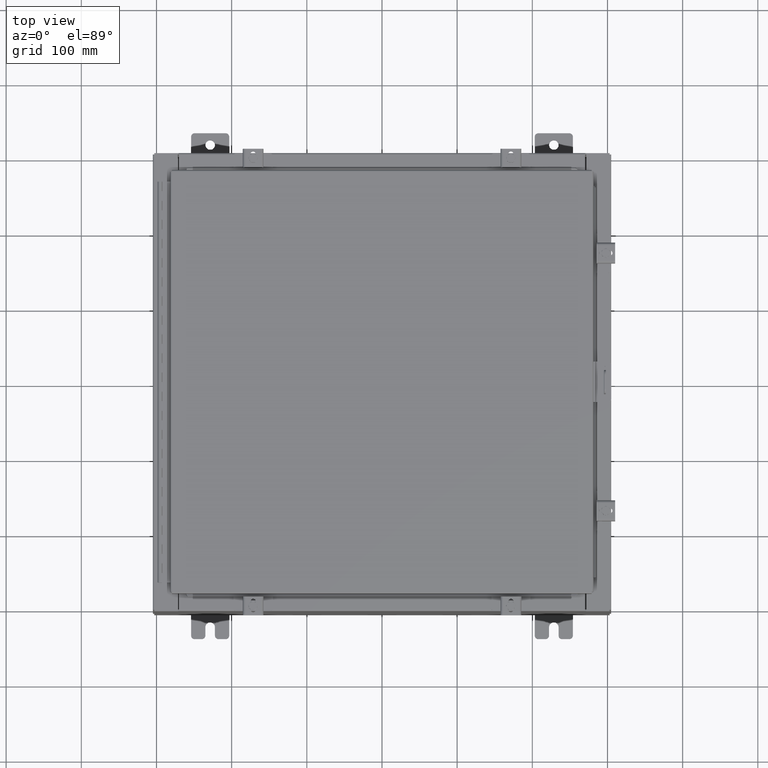
[diagram: clean part render]
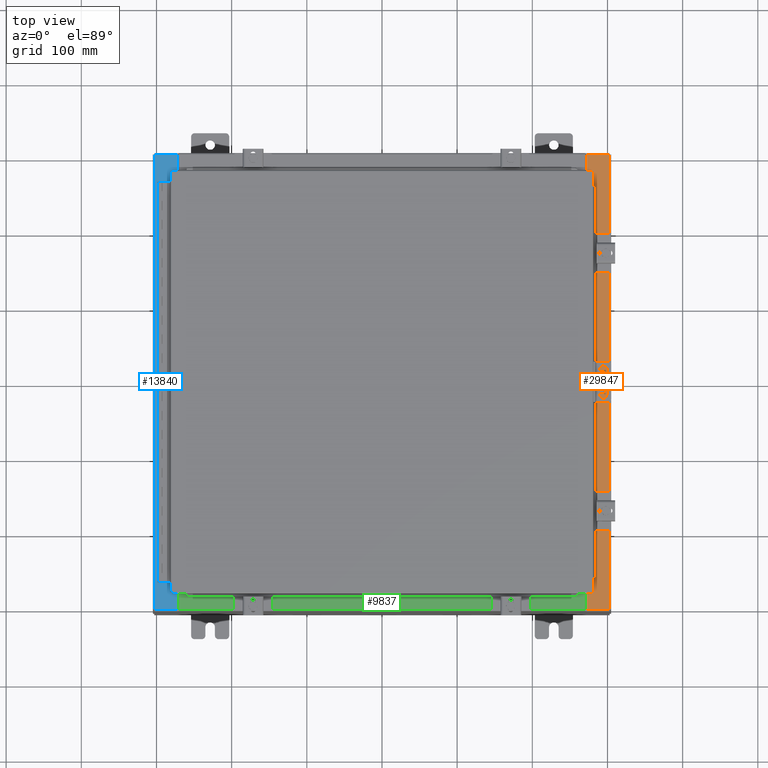
[diagram: same view with three faces highlighted in distinct colors, each labeled with its STEP entity id]
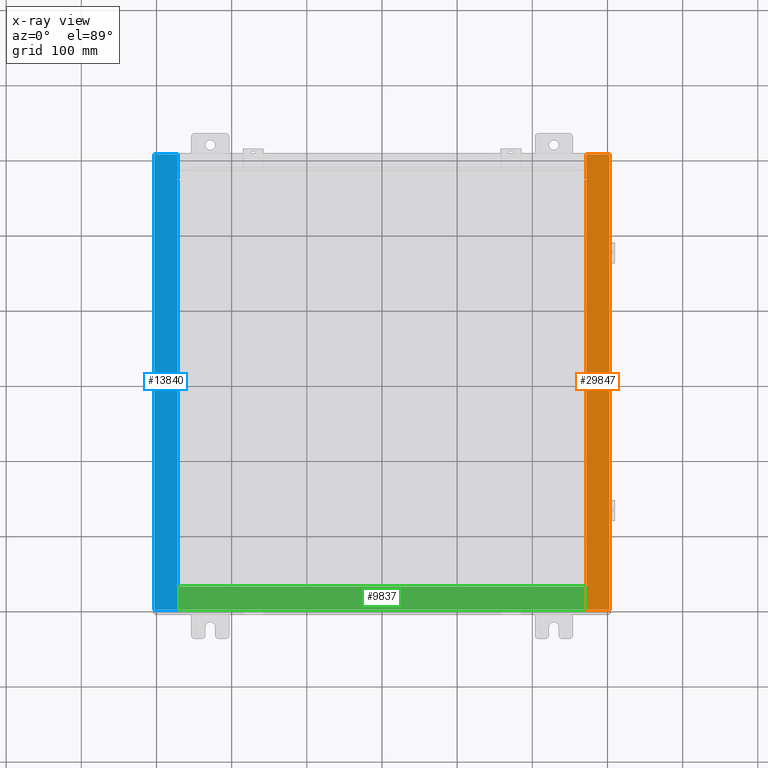
[diagram: x-ray of the same camera — body ghosted, the three highlighted faces saturated]
A machine part, top view with three faces highlighted in distinct colors.
The next image is the same camera in x-ray (body ghosted, the three faces saturated) — at least one of them is partly hidden behind the body in this view.
Their STEP definitions:

[orange] entity #29847 — the highlighted planar face has unit normal (-0, 0, -1).
#37 = VERTEX_POINT ( 'NONE', #21511 ) ;
#758 = VERTEX_POINT ( 'NONE', #10396 ) ;
#785 = VERTEX_POINT ( 'NONE', #8113 ) ;
#1003 = FACE_OUTER_BOUND ( 'NONE', #9309, .T. ) ;
#1057 = DIRECTION ( 'NONE',  ( 1.000000000000000000, 0.0000000000000000000, 0.0000000000000000000 ) ) ;
#1226 = CARTESIAN_POINT ( 'NONE',  ( 10.69970000000004100, -11.92530000000000400, 11.92530000000000900 ) ) ;
#1504 = VERTEX_POINT ( 'NONE', #20667 ) ;
#2191 = LINE ( 'NONE', #11053, #27253 ) ;
#3299 = CARTESIAN_POINT ( 'NONE',  ( 10.71270000000004300, -10.59374999999999800, 11.92530000000000900 ) ) ;
#3315 = CARTESIAN_POINT ( 'NONE',  ( 10.69970000000004100, 11.92529999999999600, 11.92530000000000900 ) ) ;
#4380 = CARTESIAN_POINT ( 'NONE',  ( 10.75005000000004300, 10.61242499999998400, 11.92530000000000900 ) ) ;
#5489 = VERTEX_POINT ( 'NONE', #1226 ) ;
#5495 = DIRECTION ( 'NONE',  ( -1.000000000000000000, 0.0000000000000000000, 0.0000000000000000000 ) ) ;
#5652 = VECTOR ( 'NONE', #8231, 39.37007874015748100 ) ;
#5933 = CARTESIAN_POINT ( 'NONE',  ( 8.532114493236847900E-014, 11.92529999999999600, 11.92530000000008500 ) ) ;
#6438 = ORIENTED_EDGE ( 'NONE', *, *, #10345, .T. ) ;
#6631 = CARTESIAN_POINT ( 'NONE',  ( 10.69970000000004100, -10.63110000000000200, 11.92530000000000900 ) ) ;
#6781 = LINE ( 'NONE', #18415, #32022 ) ;
#6853 = DIRECTION ( 'NONE',  ( 1.000000000000000000, 0.0000000000000000000, 0.0000000000000000000 ) ) ;
#7040 = DIRECTION ( 'NONE',  ( 0.0000000000000000000, -1.000000000000000000, 0.0000000000000000000 ) ) ;
#7774 = EDGE_CURVE ( 'NONE', #785, #758, #6781, .T. ) ;
#8113 = CARTESIAN_POINT ( 'NONE',  ( 10.71270000000004300, 10.59374999999998400, 11.92530000000000900 ) ) ;
#8231 = DIRECTION ( 'NONE',  ( -0.0000000000000000000, 1.000000000000000000, -0.0000000000000000000 ) ) ;
#8345 = VERTEX_POINT ( 'NONE', #26129 ) ;
#8487 = CARTESIAN_POINT ( 'NONE',  ( 11.91230000000003900, 11.92529999999999600, 11.92530000000000000 ) ) ;
#8748 = ORIENTED_EDGE ( 'NONE', *, *, #16696, .F. ) ;
#8951 = PLANE ( 'NONE',  #27566 ) ;
#9054 = EDGE_CURVE ( 'NONE', #758, #8345, #21541, .T. ) ;
#9102 = EDGE_CURVE ( 'NONE', #24243, #10454, #14054, .T. ) ;
#9309 = EDGE_LOOP ( 'NONE', ( #23076, #24942, #6438, #19589, #19623, #21460, #18783, #15992, #9600, #18583, #8748, #12539 ) ) ;
#9571 = CARTESIAN_POINT ( 'NONE',  ( 10.75005000000004300, -10.61242500000000200, 11.92530000000000900 ) ) ;
#9600 = ORIENTED_EDGE ( 'NONE', *, *, #7774, .F. ) ;
#10144 = CARTESIAN_POINT ( 'NONE',  ( 10.75005000000004300, -10.63110000000000200, 11.92530000000000900 ) ) ;
#10345 = EDGE_CURVE ( 'NONE', #5489, #1504, #23465, .T. ) ;
#10396 = CARTESIAN_POINT ( 'NONE',  ( 10.75005000000004300, 10.59374999999998400, 11.92530000000000900 ) ) ;
#10399 = CARTESIAN_POINT ( 'NONE',  ( 10.75005000000004300, -10.59375000000000200, 11.92530000000000900 ) ) ;
#10454 = VERTEX_POINT ( 'NONE', #31237 ) ;
#10577 = CARTESIAN_POINT ( 'NONE',  ( 8.532114493236847900E-014, -11.92530000000000400, 11.92530000000008500 ) ) ;
#11053 = CARTESIAN_POINT ( 'NONE',  ( 11.91230000000003900, -11.92530000000000400, 11.92530000000000000 ) ) ;
#11944 = CARTESIAN_POINT ( 'NONE',  ( 10.69970000000004100, 0.0000000000000000000, 11.92530000000000900 ) ) ;
#12076 = DIRECTION ( 'NONE',  ( 1.000000000000000000, 0.0000000000000000000, 0.0000000000000000000 ) ) ;
#12212 = EDGE_CURVE ( 'NONE', #27358, #24243, #19800, .T. ) ;
#12539 = ORIENTED_EDGE ( 'NONE', *, *, #13124, .F. ) ;
#12825 = EDGE_CURVE ( 'NONE', #16334, #32160, #26513, .T. ) ;
#13124 = EDGE_CURVE ( 'NONE', #32160, #37, #32084, .T. ) ;
#13270 = VECTOR ( 'NONE', #14482, 39.37007874015748100 ) ;
#13297 = AXIS2_PLACEMENT_3D ( 'NONE', #9571, #27213, #12076 ) ;
#13401 = DIRECTION ( 'NONE',  ( 1.000000000000000000, 0.0000000000000000000, 0.0000000000000000000 ) ) ;
#13568 = DIRECTION ( 'NONE',  ( -0.0000000000000000000, -1.000000000000000000, -0.0000000000000000000 ) ) ;
#13753 = EDGE_CURVE ( 'NONE', #16334, #5489, #21753, .T. ) ;
#13886 = VECTOR ( 'NONE', #26028, 39.37007874015748100 ) ;
#13964 = DIRECTION ( 'NONE',  ( -7.132762385546384700E-015, 0.0000000000000000000, -1.000000000000000000 ) ) ;
#14054 = LINE ( 'NONE', #11944, #13270 ) ;
#14482 = DIRECTION ( 'NONE',  ( 0.0000000000000000000, -1.000000000000000000, 0.0000000000000000000 ) ) ;
#14561 = VECTOR ( 'NONE', #5495, 39.37007874015748100 ) ;
#14614 = EDGE_CURVE ( 'NONE', #26470, #785, #32458, .T. ) ;
#15847 = VECTOR ( 'NONE', #7040, 39.37007874015748100 ) ;
#15992 = ORIENTED_EDGE ( 'NONE', *, *, #9054, .F. ) ;
#16334 = VERTEX_POINT ( 'NONE', #6631 ) ;
#16696 = EDGE_CURVE ( 'NONE', #37, #26470, #30480, .T. ) ;
#16746 = VECTOR ( 'NONE', #18146, 39.37007874015748100 ) ;
#17064 = AXIS2_PLACEMENT_3D ( 'NONE', #4380, #21852, #6853 ) ;
#17287 = EDGE_CURVE ( 'NONE', #27358, #1504, #2191, .T. ) ;
#17800 = EDGE_CURVE ( 'NONE', #8345, #10454, #20467, .T. ) ;
#18146 = DIRECTION ( 'NONE',  ( 1.000000000000000000, 0.0000000000000000000, -7.132762385546384700E-015 ) ) ;
#18415 = CARTESIAN_POINT ( 'NONE',  ( 10.71270000000004300, 10.59374999999998400, 11.92530000000000900 ) ) ;
#18583 = ORIENTED_EDGE ( 'NONE', *, *, #14614, .F. ) ;
#18783 = ORIENTED_EDGE ( 'NONE', *, *, #17800, .F. ) ;
#19589 = ORIENTED_EDGE ( 'NONE', *, *, #17287, .F. ) ;
#19623 = ORIENTED_EDGE ( 'NONE', *, *, #12212, .T. ) ;
#19772 = VECTOR ( 'NONE', #13401, 39.37007874015748100 ) ;
#19800 = LINE ( 'NONE', #5933, #13886 ) ;
#20467 = LINE ( 'NONE', #23014, #14561 ) ;
#20667 = CARTESIAN_POINT ( 'NONE',  ( 11.91230000000003900, -11.92530000000000400, 11.92530000000000000 ) ) ;
#21460 = ORIENTED_EDGE ( 'NONE', *, *, #9102, .T. ) ;
#21511 = CARTESIAN_POINT ( 'NONE',  ( 10.75005000000004300, -10.59375000000000200, 11.92530000000000900 ) ) ;
#21541 = CIRCLE ( 'NONE', #17064, 0.01867499999999949400 ) ;
#21753 = LINE ( 'NONE', #22051, #15847 ) ;
#21852 = DIRECTION ( 'NONE',  ( 7.132762385546384700E-015, 0.0000000000000000000, 1.000000000000000000 ) ) ;
#21931 = CARTESIAN_POINT ( 'NONE',  ( 10.71270000000004300, -10.59375000000000200, 11.92530000000000900 ) ) ;
#22051 = CARTESIAN_POINT ( 'NONE',  ( 10.69970000000004100, 0.0000000000000000000, 11.92530000000000900 ) ) ;
#23014 = CARTESIAN_POINT ( 'NONE',  ( 10.75005000000004300, 10.63109999999998400, 11.92530000000000900 ) ) ;
#23076 = ORIENTED_EDGE ( 'NONE', *, *, #12825, .F. ) ;
#23447 = CARTESIAN_POINT ( 'NONE',  ( 10.69970000000004100, -10.63110000000000200, 11.92530000000000900 ) ) ;
#23465 = LINE ( 'NONE', #10577, #16746 ) ;
#24243 = VERTEX_POINT ( 'NONE', #3315 ) ;
#24499 = VECTOR ( 'NONE', #30628, 39.37007874015748100 ) ;
#24942 = ORIENTED_EDGE ( 'NONE', *, *, #13753, .T. ) ;
#26028 = DIRECTION ( 'NONE',  ( -1.000000000000000000, 0.0000000000000000000, 7.132762385546384700E-015 ) ) ;
#26129 = CARTESIAN_POINT ( 'NONE',  ( 10.75005000000004300, 10.63109999999998400, 11.92530000000000900 ) ) ;
#26470 = VERTEX_POINT ( 'NONE', #21931 ) ;
#26513 = LINE ( 'NONE', #23447, #19772 ) ;
#27213 = DIRECTION ( 'NONE',  ( 7.132762385546384700E-015, 0.0000000000000000000, 1.000000000000000000 ) ) ;
#27253 = VECTOR ( 'NONE', #13568, 39.37007874015748100 ) ;
#27358 = VERTEX_POINT ( 'NONE', #8487 ) ;
#27566 = AXIS2_PLACEMENT_3D ( 'NONE', #29133, #13964, #31686 ) ;
#29133 = CARTESIAN_POINT ( 'NONE',  ( 8.532114493236847900E-014, 0.0000000000000000000, 11.92530000000008500 ) ) ;
#29847 = ADVANCED_FACE ( 'NONE', ( #1003 ), #8951, .F. ) ;
#30480 = LINE ( 'NONE', #10399, #24499 ) ;
#30628 = DIRECTION ( 'NONE',  ( -1.000000000000000000, 0.0000000000000000000, 0.0000000000000000000 ) ) ;
#31237 = CARTESIAN_POINT ( 'NONE',  ( 10.69970000000004100, 10.63109999999998600, 11.92530000000000900 ) ) ;
#31686 = DIRECTION ( 'NONE',  ( -1.000000000000000000, 0.0000000000000000000, 7.132762385546384700E-015 ) ) ;
#32022 = VECTOR ( 'NONE', #1057, 39.37007874015748100 ) ;
#32084 = CIRCLE ( 'NONE', #13297, 0.01867499999999949400 ) ;
#32160 = VERTEX_POINT ( 'NONE', #10144 ) ;
#32458 = LINE ( 'NONE', #3299, #5652 ) ;

[blue] entity #13840 — the highlighted planar face has unit normal (0, 0, -1).
#293 = DIRECTION ( 'NONE',  ( -1.000000000000000000, 0.0000000000000000000, -7.132762385546384700E-015 ) ) ;
#715 = EDGE_CURVE ( 'NONE', #11263, #8062, #16193, .T. ) ;
#762 = CARTESIAN_POINT ( 'NONE',  ( -10.71270000000004800, -10.59374999999998900, 11.92530000000000900 ) ) ;
#1096 = ORIENTED_EDGE ( 'NONE', *, *, #12403, .F. ) ;
#1371 = CARTESIAN_POINT ( 'NONE',  ( -11.91230000000004500, -11.92530000000000000, 11.92530000000000000 ) ) ;
#1410 = EDGE_CURVE ( 'NONE', #31050, #10218, #10649, .T. ) ;
#1416 = LINE ( 'NONE', #4558, #20919 ) ;
#1535 = LINE ( 'NONE', #23253, #27349 ) ;
#1676 = CARTESIAN_POINT ( 'NONE',  ( -10.75005000000004600, -10.63109999999998800, 11.92530000000000900 ) ) ;
#2502 = DIRECTION ( 'NONE',  ( 7.132762385546384700E-015, 0.0000000000000000000, -1.000000000000000000 ) ) ;
#2624 = EDGE_CURVE ( 'NONE', #19369, #31050, #5578, .T. ) ;
#2973 = CARTESIAN_POINT ( 'NONE',  ( -10.75005000000004600, -10.59374999999998900, 11.92530000000000900 ) ) ;
#3248 = VECTOR ( 'NONE', #7313, 39.37007874015748100 ) ;
#4063 = VECTOR ( 'NONE', #28016, 39.37007874015748100 ) ;
#4433 = DIRECTION ( 'NONE',  ( -1.000000000000000000, 0.0000000000000000000, 0.0000000000000000000 ) ) ;
#4558 = CARTESIAN_POINT ( 'NONE',  ( -10.75005000000004600, 10.59374999999999800, 11.92530000000000900 ) ) ;
#5079 = VERTEX_POINT ( 'NONE', #6465 ) ;
#5578 = LINE ( 'NONE', #14065, #24796 ) ;
#5785 = CARTESIAN_POINT ( 'NONE',  ( -10.75005000000004600, 10.61242499999999800, 11.92530000000000900 ) ) ;
#6032 = EDGE_CURVE ( 'NONE', #8062, #24642, #19445, .T. ) ;
#6341 = CARTESIAN_POINT ( 'NONE',  ( -10.69970000000004600, -11.92530000000000000, 11.92530000000000900 ) ) ;
#6465 = CARTESIAN_POINT ( 'NONE',  ( -10.75005000000004600, -10.63109999999998800, 11.92530000000000900 ) ) ;
#6600 = DIRECTION ( 'NONE',  ( -7.132762385546384700E-015, -0.0000000000000000000, 1.000000000000000000 ) ) ;
#6932 = LINE ( 'NONE', #23075, #18675 ) ;
#6995 = EDGE_LOOP ( 'NONE', ( #23199, #26454, #17493, #17280, #13218, #27930, #25802, #23777, #1096, #30701, #12829, #31405 ) ) ;
#7313 = DIRECTION ( 'NONE',  ( 0.0000000000000000000, 1.000000000000000000, 0.0000000000000000000 ) ) ;
#7339 = VERTEX_POINT ( 'NONE', #14369 ) ;
#7959 = EDGE_CURVE ( 'NONE', #24642, #7339, #1416, .T. ) ;
#8062 = VERTEX_POINT ( 'NONE', #12461 ) ;
#8259 = DIRECTION ( 'NONE',  ( 1.000000000000000000, 0.0000000000000000000, 0.0000000000000000000 ) ) ;
#8430 = VECTOR ( 'NONE', #4433, 39.37007874015748100 ) ;
#8596 = EDGE_CURVE ( 'NONE', #11263, #17711, #29950, .T. ) ;
#9678 = EDGE_CURVE ( 'NONE', #16692, #5079, #25883, .T. ) ;
#9681 = EDGE_CURVE ( 'NONE', #5079, #10218, #11660, .T. ) ;
#10050 = EDGE_CURVE ( 'NONE', #17711, #22971, #16367, .T. ) ;
#10218 = VERTEX_POINT ( 'NONE', #18162 ) ;
#10285 = DIRECTION ( 'NONE',  ( -1.000000000000000000, 0.0000000000000000000, 0.0000000000000000000 ) ) ;
#10353 = CARTESIAN_POINT ( 'NONE',  ( -10.69970000000004600, 0.0000000000000000000, 11.92530000000000900 ) ) ;
#10649 = LINE ( 'NONE', #10353, #4063 ) ;
#11225 = VERTEX_POINT ( 'NONE', #762 ) ;
#11251 = EDGE_CURVE ( 'NONE', #19369, #22971, #6932, .T. ) ;
#11263 = VERTEX_POINT ( 'NONE', #23186 ) ;
#11660 = LINE ( 'NONE', #1676, #24285 ) ;
#12089 = AXIS2_PLACEMENT_3D ( 'NONE', #26991, #2502, #19896 ) ;
#12160 = EDGE_CURVE ( 'NONE', #7339, #11225, #1535, .T. ) ;
#12403 = EDGE_CURVE ( 'NONE', #11225, #16692, #21774, .T. ) ;
#12461 = CARTESIAN_POINT ( 'NONE',  ( -10.75005000000004600, 10.63109999999999600, 11.92530000000000900 ) ) ;
#12829 = ORIENTED_EDGE ( 'NONE', *, *, #7959, .F. ) ;
#13218 = ORIENTED_EDGE ( 'NONE', *, *, #2624, .T. ) ;
#13224 = DIRECTION ( 'NONE',  ( -0.0000000000000000000, -1.000000000000000000, -0.0000000000000000000 ) ) ;
#13840 = ADVANCED_FACE ( 'NONE', ( #32096 ), #21878, .F. ) ;
#14065 = CARTESIAN_POINT ( 'NONE',  ( -8.532114493236847900E-014, -11.92530000000000000, 11.92530000000008500 ) ) ;
#14369 = CARTESIAN_POINT ( 'NONE',  ( -10.71270000000004800, 10.59374999999999800, 11.92530000000000900 ) ) ;
#14607 = VECTOR ( 'NONE', #10285, 39.37007874015748100 ) ;
#16193 = LINE ( 'NONE', #25371, #14607 ) ;
#16367 = LINE ( 'NONE', #17627, #22272 ) ;
#16432 = AXIS2_PLACEMENT_3D ( 'NONE', #21595, #6600, #24140 ) ;
#16692 = VERTEX_POINT ( 'NONE', #2973 ) ;
#17280 = ORIENTED_EDGE ( 'NONE', *, *, #11251, .F. ) ;
#17493 = ORIENTED_EDGE ( 'NONE', *, *, #10050, .T. ) ;
#17627 = CARTESIAN_POINT ( 'NONE',  ( -8.532114493236847900E-014, 11.92529999999999800, 11.92530000000008500 ) ) ;
#17711 = VERTEX_POINT ( 'NONE', #30365 ) ;
#18162 = CARTESIAN_POINT ( 'NONE',  ( -10.69970000000004600, -10.63109999999999100, 11.92530000000000900 ) ) ;
#18675 = VECTOR ( 'NONE', #20626, 39.37007874015748100 ) ;
#19369 = VERTEX_POINT ( 'NONE', #1371 ) ;
#19445 = CIRCLE ( 'NONE', #20761, 0.01867499999999949400 ) ;
#19522 = CARTESIAN_POINT ( 'NONE',  ( -10.75005000000004600, 10.59374999999999800, 11.92530000000000900 ) ) ;
#19786 = CARTESIAN_POINT ( 'NONE',  ( -10.69970000000004600, 0.0000000000000000000, 11.92530000000000900 ) ) ;
#19896 = DIRECTION ( 'NONE',  ( -1.000000000000000000, 0.0000000000000000000, -7.132762385546384700E-015 ) ) ;
#20626 = DIRECTION ( 'NONE',  ( -0.0000000000000000000, 1.000000000000000000, -0.0000000000000000000 ) ) ;
#20761 = AXIS2_PLACEMENT_3D ( 'NONE', #5785, #23302, #8259 ) ;
#20919 = VECTOR ( 'NONE', #29726, 39.37007874015748100 ) ;
#21595 = CARTESIAN_POINT ( 'NONE',  ( -10.75005000000004600, -10.61242499999998900, 11.92530000000000900 ) ) ;
#21774 = LINE ( 'NONE', #32038, #8430 ) ;
#21878 = PLANE ( 'NONE',  #12089 ) ;
#22272 = VECTOR ( 'NONE', #293, 39.37007874015748100 ) ;
#22971 = VERTEX_POINT ( 'NONE', #26612 ) ;
#23075 = CARTESIAN_POINT ( 'NONE',  ( -11.91230000000004500, 11.92529999999999800, 11.92530000000000000 ) ) ;
#23186 = CARTESIAN_POINT ( 'NONE',  ( -10.69970000000004600, 10.63109999999999600, 11.92530000000000900 ) ) ;
#23199 = ORIENTED_EDGE ( 'NONE', *, *, #715, .F. ) ;
#23253 = CARTESIAN_POINT ( 'NONE',  ( -10.71270000000004800, 10.59374999999999300, 11.92530000000000900 ) ) ;
#23302 = DIRECTION ( 'NONE',  ( -7.132762385546384700E-015, -0.0000000000000000000, 1.000000000000000000 ) ) ;
#23777 = ORIENTED_EDGE ( 'NONE', *, *, #9678, .F. ) ;
#24140 = DIRECTION ( 'NONE',  ( 1.000000000000000000, 0.0000000000000000000, 0.0000000000000000000 ) ) ;
#24285 = VECTOR ( 'NONE', #29164, 39.37007874015748100 ) ;
#24642 = VERTEX_POINT ( 'NONE', #19522 ) ;
#24796 = VECTOR ( 'NONE', #31781, 39.37007874015748100 ) ;
#25371 = CARTESIAN_POINT ( 'NONE',  ( -10.69970000000004600, 10.63109999999999600, 11.92530000000000900 ) ) ;
#25802 = ORIENTED_EDGE ( 'NONE', *, *, #9681, .F. ) ;
#25883 = CIRCLE ( 'NONE', #16432, 0.01867499999999949400 ) ;
#26454 = ORIENTED_EDGE ( 'NONE', *, *, #8596, .T. ) ;
#26612 = CARTESIAN_POINT ( 'NONE',  ( -11.91230000000004500, 11.92529999999999800, 11.92530000000000000 ) ) ;
#26991 = CARTESIAN_POINT ( 'NONE',  ( -8.532114493236847900E-014, 0.0000000000000000000, 11.92530000000008500 ) ) ;
#27349 = VECTOR ( 'NONE', #13224, 39.37007874015748100 ) ;
#27930 = ORIENTED_EDGE ( 'NONE', *, *, #1410, .T. ) ;
#28016 = DIRECTION ( 'NONE',  ( 0.0000000000000000000, 1.000000000000000000, 0.0000000000000000000 ) ) ;
#29164 = DIRECTION ( 'NONE',  ( 1.000000000000000000, 0.0000000000000000000, 0.0000000000000000000 ) ) ;
#29726 = DIRECTION ( 'NONE',  ( 1.000000000000000000, 0.0000000000000000000, 0.0000000000000000000 ) ) ;
#29950 = LINE ( 'NONE', #19786, #3248 ) ;
#30365 = CARTESIAN_POINT ( 'NONE',  ( -10.69970000000004600, 11.92529999999999800, 11.92530000000000900 ) ) ;
#30701 = ORIENTED_EDGE ( 'NONE', *, *, #12160, .F. ) ;
#31050 = VERTEX_POINT ( 'NONE', #6341 ) ;
#31405 = ORIENTED_EDGE ( 'NONE', *, *, #6032, .F. ) ;
#31781 = DIRECTION ( 'NONE',  ( 1.000000000000000000, -0.0000000000000000000, 7.132762385546384700E-015 ) ) ;
#32038 = CARTESIAN_POINT ( 'NONE',  ( -10.71270000000004800, -10.59374999999998900, 11.92530000000000900 ) ) ;
#32096 = FACE_OUTER_BOUND ( 'NONE', #6995, .T. ) ;

[green] entity #9837 — the highlighted planar face has unit normal (-0, -0, 1).
#2808 = DIRECTION ( 'NONE',  ( -1.000000000000000000, 0.0000000000000000000, 0.0000000000000000000 ) ) ;
#2915 = VERTEX_POINT ( 'NONE', #30546 ) ;
#5240 = CARTESIAN_POINT ( 'NONE',  ( 10.63720000000000400, -1.287299999999998800, 6.000000000000003600 ) ) ;
#5751 = EDGE_CURVE ( 'NONE', #26579, #6211, #13145, .T. ) ;
#5770 = VECTOR ( 'NONE', #2808, 39.37007874015748100 ) ;
#6211 = VERTEX_POINT ( 'NONE', #13903 ) ;
#7018 = PLANE ( 'NONE',  #16324 ) ;
#7088 = LINE ( 'NONE', #10040, #13712 ) ;
#7229 = EDGE_LOOP ( 'NONE', ( #26805, #30241, #13581, #31510 ) ) ;
#7305 = VECTOR ( 'NONE', #14712, 39.37007874015748100 ) ;
#8880 = CARTESIAN_POINT ( 'NONE',  ( -10.63720000000000200, -0.07469999999999973900, 6.000000000000001800 ) ) ;
#9513 = DIRECTION ( 'NONE',  ( 0.0000000000000000000, -1.000000000000000000, 2.674785894579892700E-015 ) ) ;
#9837 = ADVANCED_FACE ( 'NONE', ( #21895 ), #7018, .T. ) ;
#10040 = CARTESIAN_POINT ( 'NONE',  ( 10.63720000000000200, -1.300299999999999800, 6.000000000000006200 ) ) ;
#11533 = EDGE_CURVE ( 'NONE', #11850, #6211, #25781, .T. ) ;
#11850 = VERTEX_POINT ( 'NONE', #17322 ) ;
#13145 = LINE ( 'NONE', #29895, #7305 ) ;
#13581 = ORIENTED_EDGE ( 'NONE', *, *, #19834, .F. ) ;
#13712 = VECTOR ( 'NONE', #25128, 39.37007874015748100 ) ;
#13903 = CARTESIAN_POINT ( 'NONE',  ( -10.63720000000000200, -0.08770000000000026400, 6.000000000000001800 ) ) ;
#13923 = LINE ( 'NONE', #5240, #5770 ) ;
#14712 = DIRECTION ( 'NONE',  ( -1.000000000000000000, 0.0000000000000000000, 0.0000000000000000000 ) ) ;
#16324 = AXIS2_PLACEMENT_3D ( 'NONE', #32164, #24586, #9513 ) ;
#17322 = CARTESIAN_POINT ( 'NONE',  ( -10.63720000000000200, -1.287299999999998100, 6.000000000000004400 ) ) ;
#19834 = EDGE_CURVE ( 'NONE', #26579, #2915, #7088, .T. ) ;
#19938 = CARTESIAN_POINT ( 'NONE',  ( 10.63720000000000400, -0.08770000000000002800, 6.000000000000001800 ) ) ;
#21495 = DIRECTION ( 'NONE',  ( -0.0000000000000000000, 1.000000000000000000, -2.674785894579892700E-015 ) ) ;
#21895 = FACE_OUTER_BOUND ( 'NONE', #7229, .T. ) ;
#24586 = DIRECTION ( 'NONE',  ( 0.0000000000000000000, 2.674785894579892700E-015, 1.000000000000000000 ) ) ;
#25128 = DIRECTION ( 'NONE',  ( -0.0000000000000000000, -1.000000000000000000, 3.566381192773190000E-015 ) ) ;
#25781 = LINE ( 'NONE', #8880, #31756 ) ;
#26579 = VERTEX_POINT ( 'NONE', #19938 ) ;
#26805 = ORIENTED_EDGE ( 'NONE', *, *, #11533, .F. ) ;
#29895 = CARTESIAN_POINT ( 'NONE',  ( -3.422455537835030400E-018, -0.08770000000000026400, 6.000000000000001800 ) ) ;
#30241 = ORIENTED_EDGE ( 'NONE', *, *, #31310, .F. ) ;
#30546 = CARTESIAN_POINT ( 'NONE',  ( 10.63720000000000200, -1.287299999999998800, 6.000000000000006200 ) ) ;
#31310 = EDGE_CURVE ( 'NONE', #2915, #11850, #13923, .T. ) ;
#31510 = ORIENTED_EDGE ( 'NONE', *, *, #5751, .T. ) ;
#31756 = VECTOR ( 'NONE', #21495, 39.37007874015748100 ) ;
#32164 = CARTESIAN_POINT ( 'NONE',  ( -3.422455537835030400E-018, 1.610972251716582100E-014, 6.000000000000001800 ) ) ;